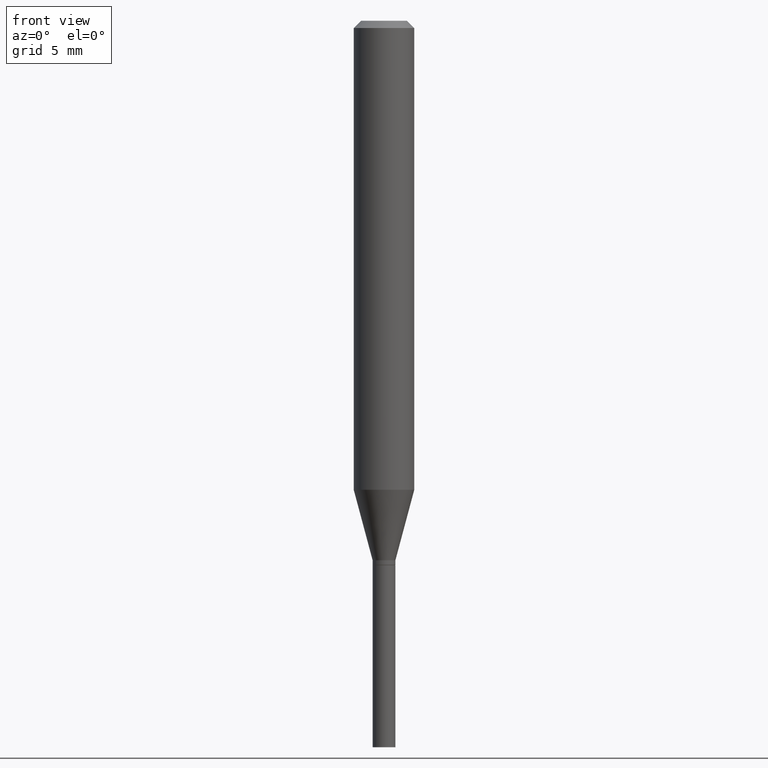
[diagram: clean part render]
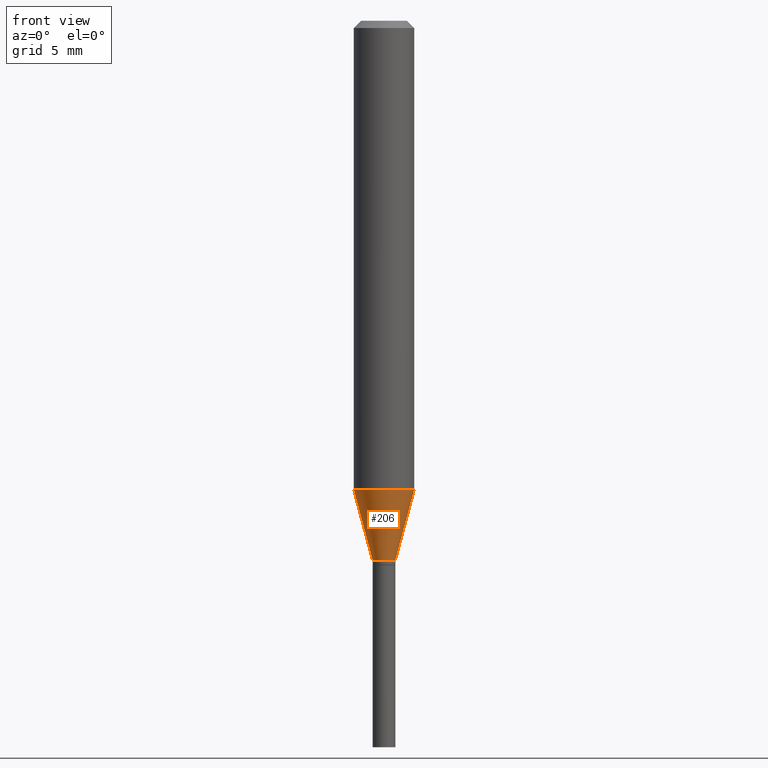
[diagram: same view with one face highlighted and labeled with its STEP entity id]
A machine part, front view. The second image highlights one B-rep face of the part: STEP entity #206.
In plain terms, the highlighted conical surface has half-angle 15 deg.
Its self-contained STEP definition (entity closure, byte-faithful):
#13 = ORIENTED_EDGE ( 'NONE', *, *, #16, .T. ) ;
#16 = EDGE_CURVE ( 'NONE', #209, #158, #44, .T. ) ;
#23 = DIRECTION ( 'NONE',  ( -2.445468806185136597E-29, 3.491481338843145583E-15, 1.000000000000000000 ) ) ;
#29 = AXIS2_PLACEMENT_3D ( 'NONE', #379, #23, #317 ) ;
#44 = CIRCLE ( 'NONE', #29, 0.02350000000000006598 ) ;
#53 = VERTEX_POINT ( 'NONE', #305 ) ;
#88 = CARTESIAN_POINT ( 'NONE',  ( -0.02350000000000006598, -3.722532668567641270E-15, -1.114000000000000101 ) ) ;
#105 = CARTESIAN_POINT ( 'NONE',  ( -0.02350000000000006598, -3.329884312964718745E-15, -1.114000000000000101 ) ) ;
#117 = VECTOR ( 'NONE', #245, 39.37007874015748854 ) ;
#138 = EDGE_CURVE ( 'NONE', #158, #374, #326, .T. ) ;
#143 = AXIS2_PLACEMENT_3D ( 'NONE', #309, #445, #411 ) ;
#147 = FACE_OUTER_BOUND ( 'NONE', #200, .T. ) ;
#158 = VERTEX_POINT ( 'NONE', #161 ) ;
#161 = CARTESIAN_POINT ( 'NONE',  ( 0.02350000000000006598, -4.053609834396893003E-15, -1.114000000000000101 ) ) ;
#164 = ORIENTED_EDGE ( 'NONE', *, *, #380, .F. ) ;
#168 = CARTESIAN_POINT ( 'NONE',  ( 0.06250000000000000000, -3.817760334567251294E-15, -0.9684500185048144916 ) ) ;
#188 = DIRECTION ( 'NONE',  ( -2.445468806185136597E-29, 3.491481338843145583E-15, 1.000000000000000000 ) ) ;
#192 = CARTESIAN_POINT ( 'NONE',  ( 0.02350000000000006598, -4.053609834396893003E-15, -1.114000000000000101 ) ) ;
#200 = EDGE_LOOP ( 'NONE', ( #254, #13, #414, #164 ) ) ;
#206 = ADVANCED_FACE ( 'NONE', ( #147 ), #300, .T. ) ;
#209 = VERTEX_POINT ( 'NONE', #105 ) ;
#221 = CARTESIAN_POINT ( 'NONE',  ( 2.724252250090242644E-29, -3.889510211471265357E-15, -1.114000000000000101 ) ) ;
#245 = DIRECTION ( 'NONE',  ( -0.2588190451025211836, 5.211531920934547886E-15, 0.9659258262890679791 ) ) ;
#254 = ORIENTED_EDGE ( 'NONE', *, *, #402, .F. ) ;
#288 = VECTOR ( 'NONE', #294, 39.37007874015748854 ) ;
#294 = DIRECTION ( 'NONE',  ( 0.2588190451025211836, 1.565188264969622559E-15, 0.9659258262890679791 ) ) ;
#300 = CONICAL_SURFACE ( 'NONE', #371, 0.02350000000000006598, 0.2617993877991499074 ) ;
#305 = CARTESIAN_POINT ( 'NONE',  ( -0.06250000000000000000, -2.937235957361797009E-15, -0.9684500185048144916 ) ) ;
#309 = CARTESIAN_POINT ( 'NONE',  ( 2.368314310602942149E-29, -3.381325167211859231E-15, -0.9684500185048144916 ) ) ;
#317 = DIRECTION ( 'NONE',  ( 1.000000000000000000, -6.982962677686271444E-15, 0.000000000000000000 ) ) ;
#326 = LINE ( 'NONE', #192, #288 ) ;
#371 = AXIS2_PLACEMENT_3D ( 'NONE', #221, #188, #385 ) ;
#374 = VERTEX_POINT ( 'NONE', #168 ) ;
#379 = CARTESIAN_POINT ( 'NONE',  ( 2.724252250090242644E-29, -3.889510211471265357E-15, -1.114000000000000101 ) ) ;
#380 = EDGE_CURVE ( 'NONE', #53, #374, #382, .T. ) ;
#382 = CIRCLE ( 'NONE', #143, 0.06250000000000000000 ) ;
#385 = DIRECTION ( 'NONE',  ( 1.000000000000000000, -6.982962677686271444E-15, 0.000000000000000000 ) ) ;
#402 = EDGE_CURVE ( 'NONE', #209, #53, #413, .T. ) ;
#411 = DIRECTION ( 'NONE',  ( 1.000000000000000000, -6.982962677686270655E-15, 0.000000000000000000 ) ) ;
#413 = LINE ( 'NONE', #88, #117 ) ;
#414 = ORIENTED_EDGE ( 'NONE', *, *, #138, .T. ) ;
#445 = DIRECTION ( 'NONE',  ( -2.445468806185136597E-29, 3.491481338843145583E-15, 1.000000000000000000 ) ) ;